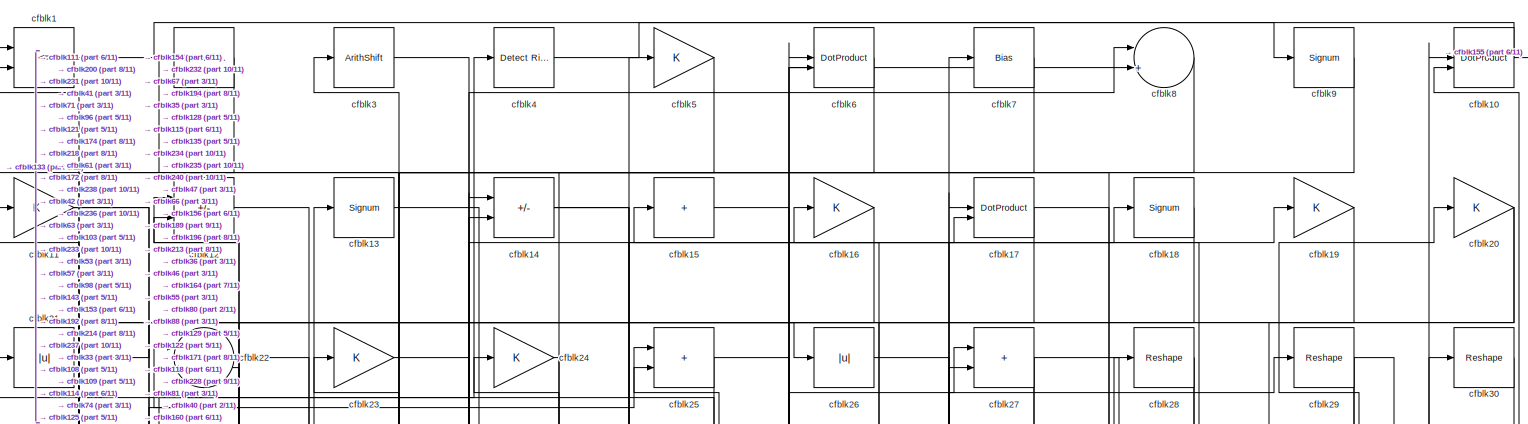
[diagram: root canvas - part 1/11, full width, top band]
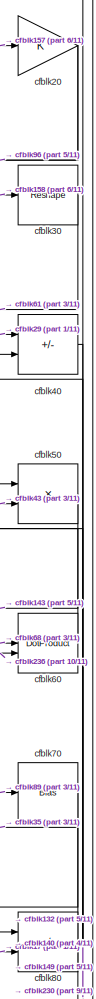
[diagram: root canvas - part 2/11, top right region]
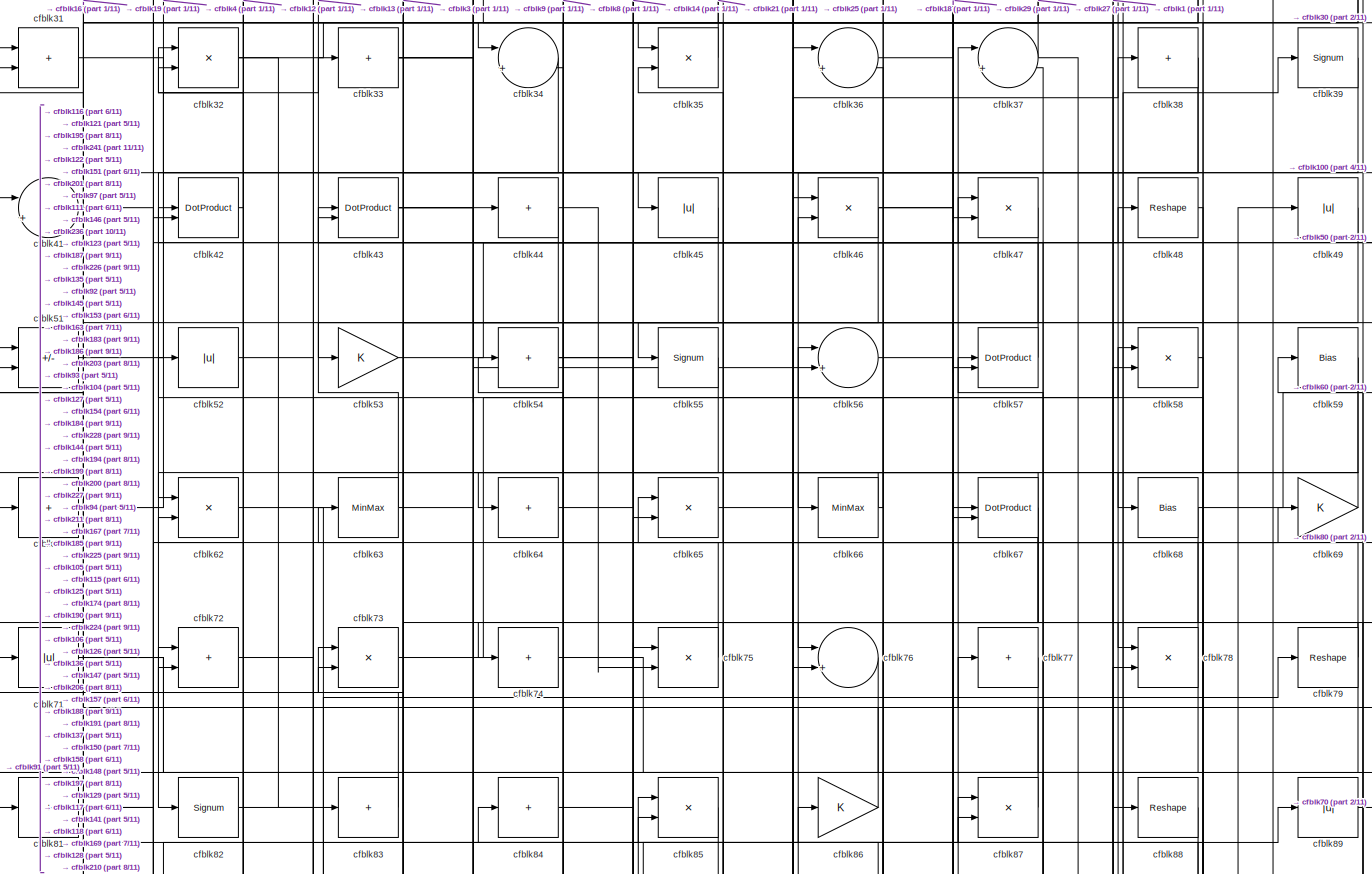
[diagram: root canvas - part 3/11, full width, top band]
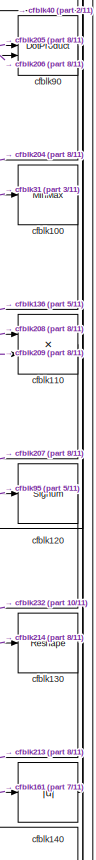
[diagram: root canvas - part 4/11, middle right region]
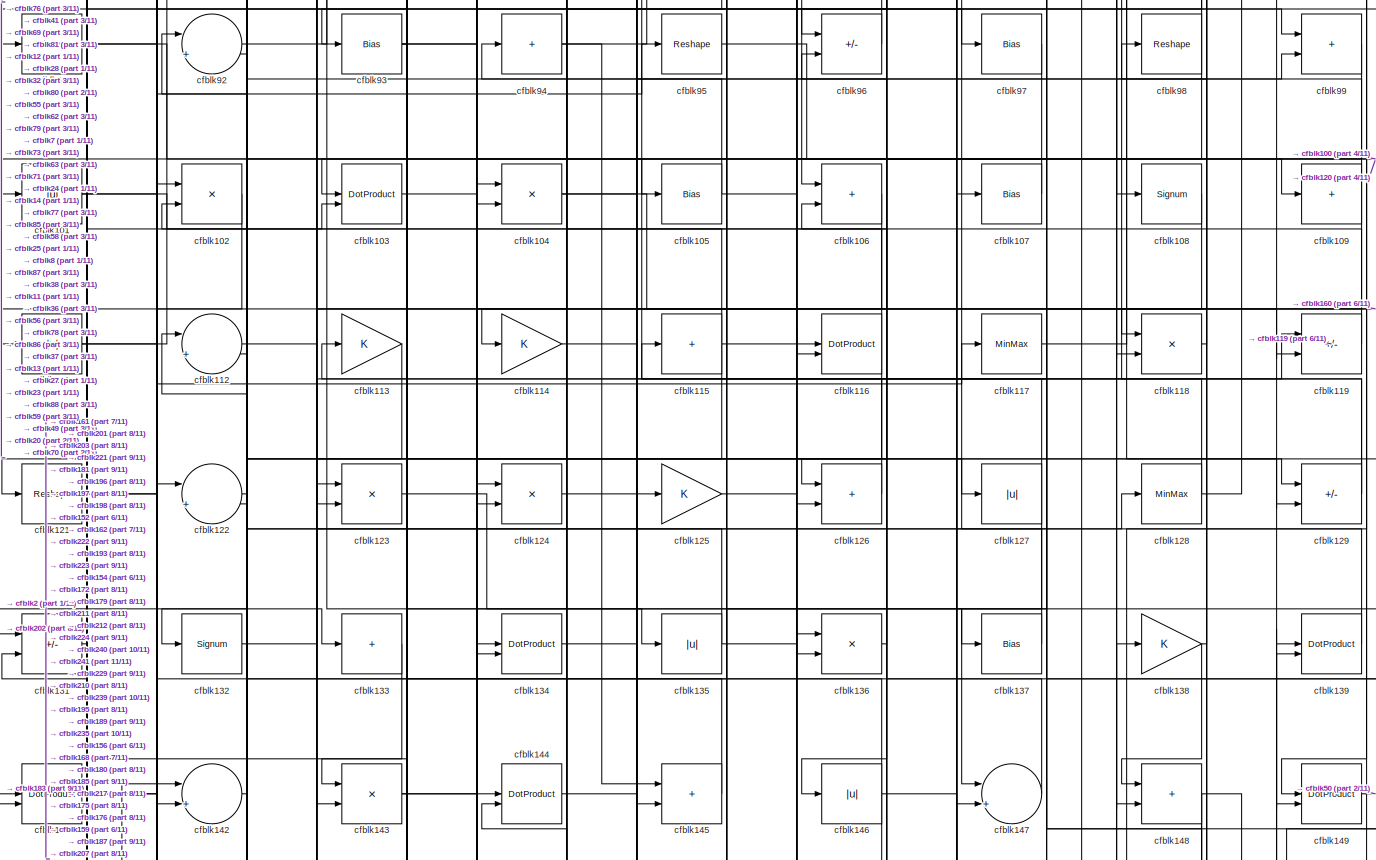
[diagram: root canvas - part 5/11, full width, middle band]
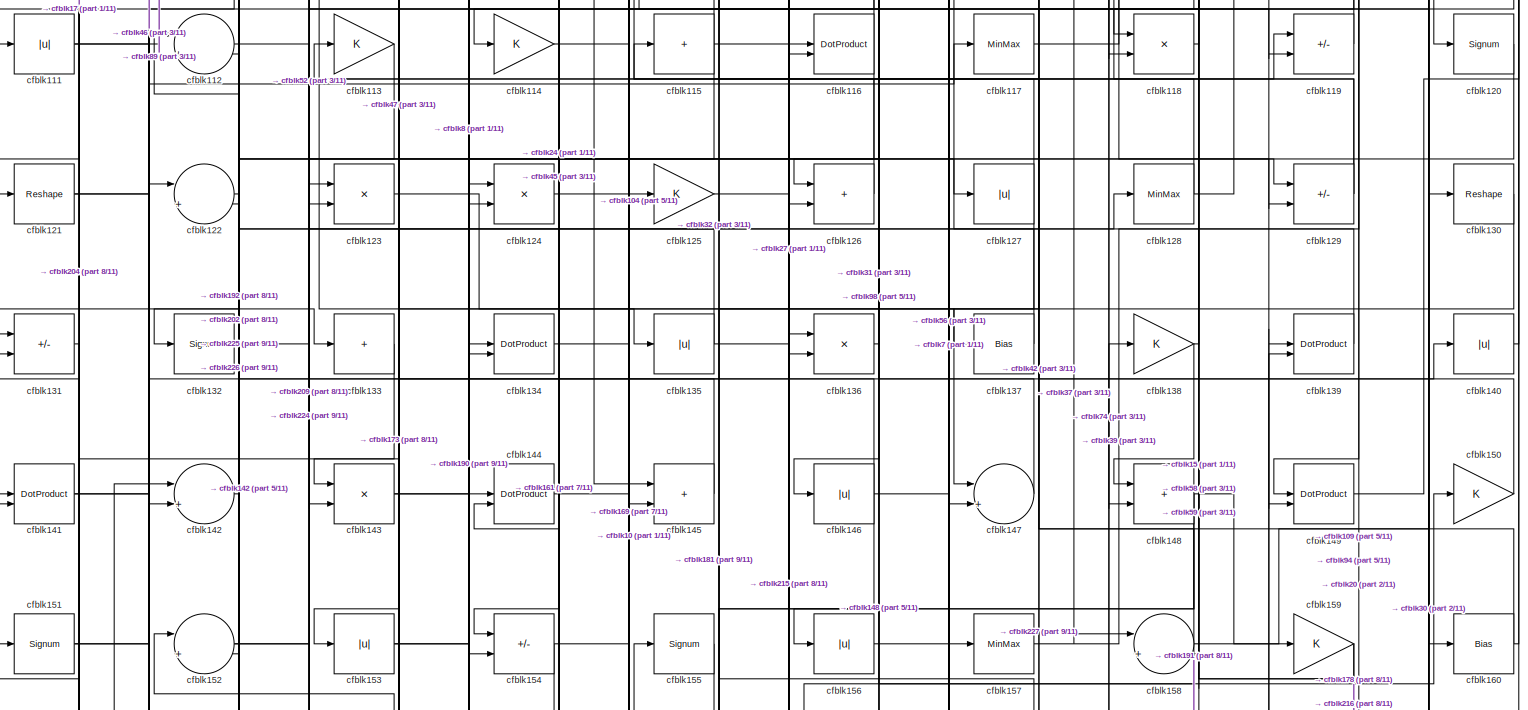
[diagram: root canvas - part 6/11, full width, middle band]
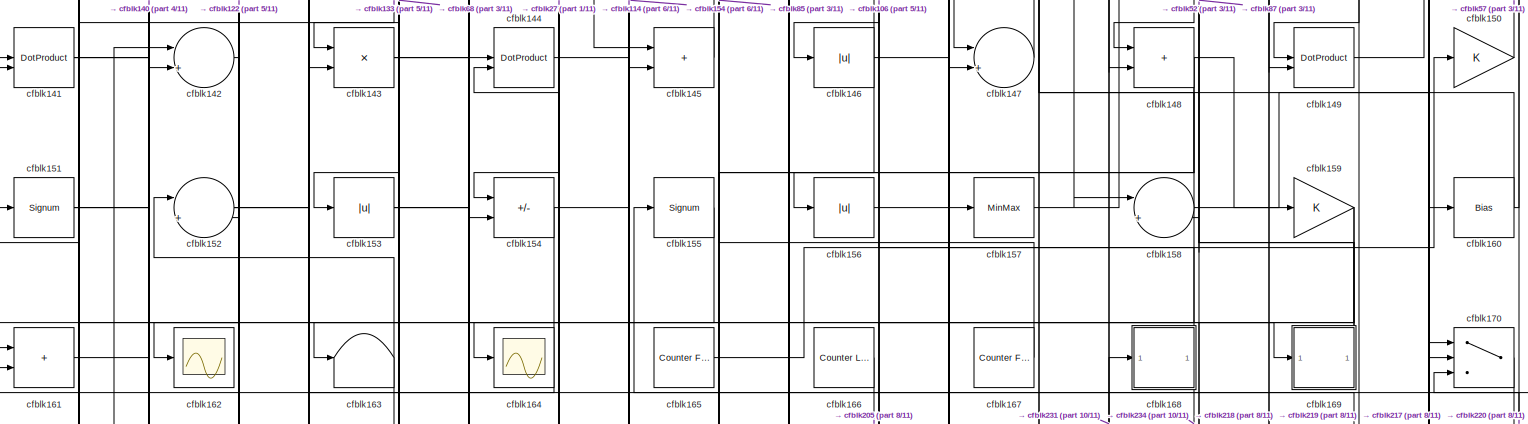
[diagram: root canvas - part 7/11, full width, middle band]
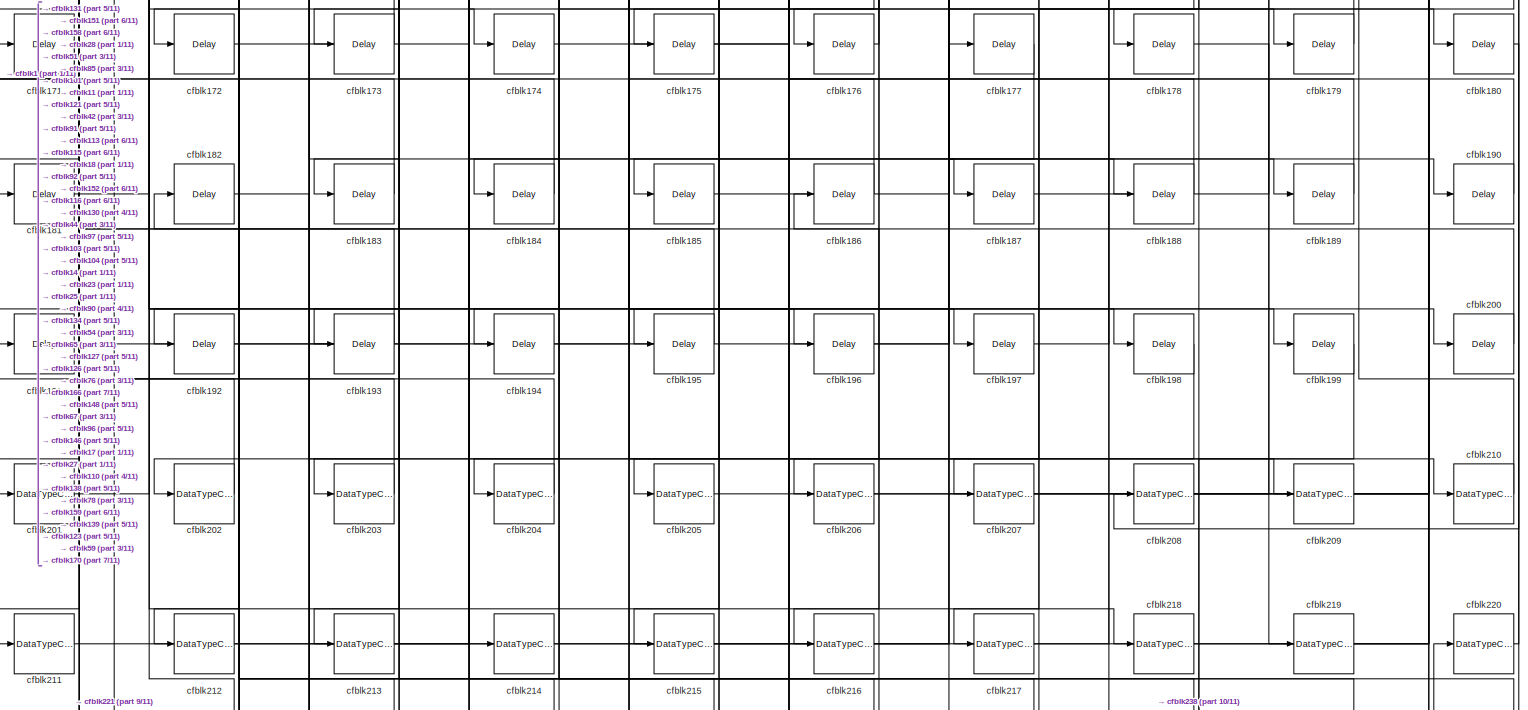
[diagram: root canvas - part 8/11, full width, bottom band]
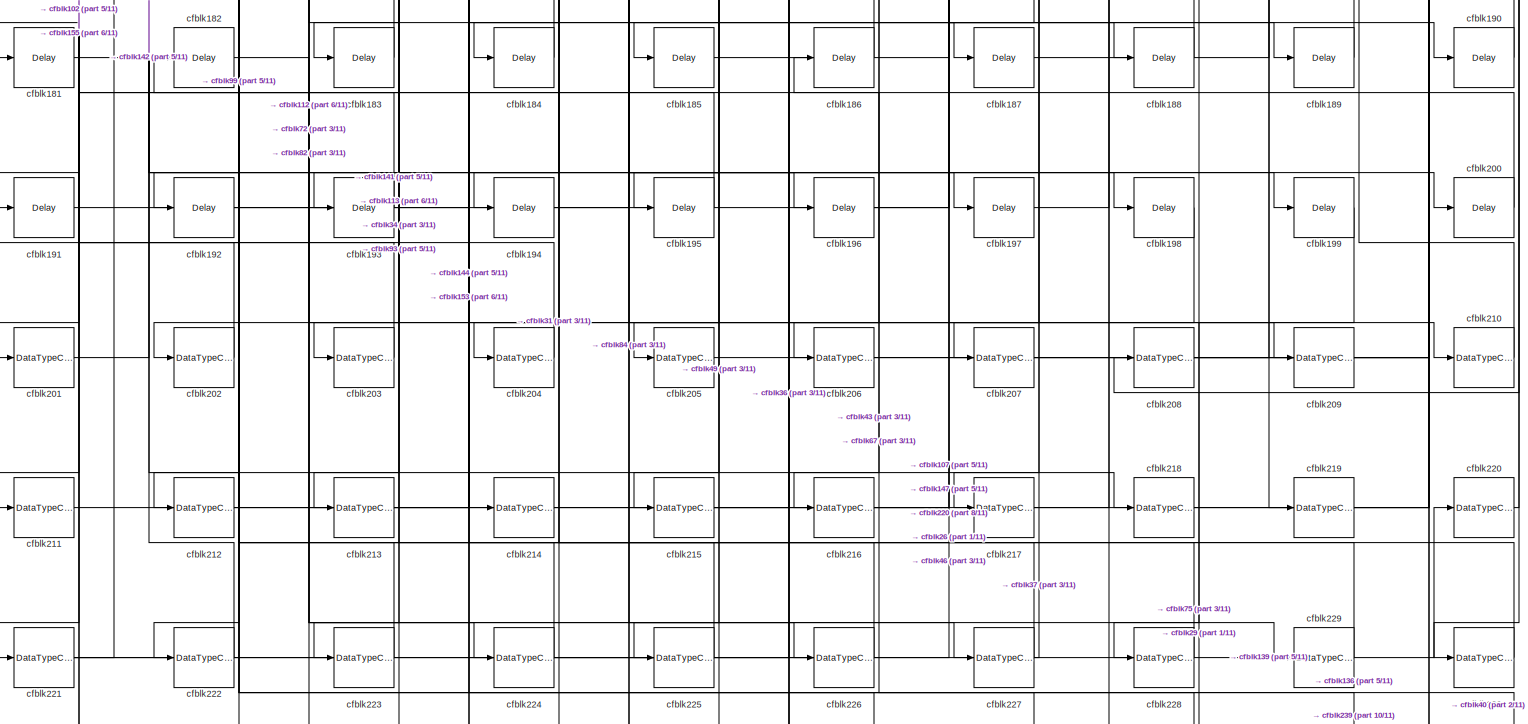
[diagram: root canvas - part 9/11, full width, bottom band]
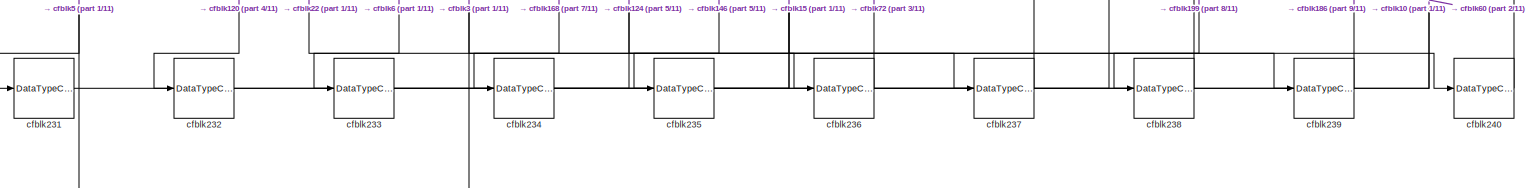
[diagram: root canvas - part 10/11, full width, bottom band]
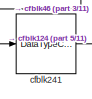
[diagram: root canvas - part 11/11, bottom left region]
MODEL slx_2ee42b140aee
KIND model
CONFIG AbsTol = auto
CONFIG EnableMultiTasking = off
CONFIG FixedStep = auto
CONFIG MaxStep = auto
CONFIG MinStep = auto
CONFIG RelTol = 1e-3
CONFIG SampleTimeConstraint = Unconstrained
CONFIG SolverName = VariableStepAuto
CONFIG StartTime = 0.0
CONFIG StopTime = 10.0
BLOCK [RelationalOperator] cfblk1
  InputSameDT = off
  Operator = <=
  OutDataTypeStr = boolean
BLOCK [DotProduct] cfblk10
  OutDataTypeStr = Inherit: Inherit via internal rule
BLOCK [MinMax] cfblk100
BLOCK [Abs] cfblk101
  SaturateOnIntegerOverflow = off
BLOCK [Product] cfblk102
  Inputs = */
  RndMeth = Zero
  SaturateOnIntegerOverflow = on
BLOCK [DotProduct] cfblk103
  OutDataTypeStr = Inherit: Inherit via internal rule
BLOCK [Product] cfblk104
  Inputs = */
  RndMeth = Zero
  SaturateOnIntegerOverflow = on
BLOCK [Bias] cfblk105
  Bias = 0.0
  SaturateOnIntegerOverflow = off
BLOCK [Sum] cfblk106
  IconShape = rectangular
BLOCK [Bias] cfblk107
  Bias = 0.0
  SaturateOnIntegerOverflow = off
BLOCK [Signum] cfblk108
BLOCK [Sum] cfblk109
  IconShape = rectangular
  Inputs = +
BLOCK [Gain] cfblk11
BLOCK [Product] cfblk110
  Inputs = */
  RndMeth = Zero
  SaturateOnIntegerOverflow = on
BLOCK [Abs] cfblk111
  SaturateOnIntegerOverflow = off
BLOCK [Sum] cfblk112
  Inputs = |++
BLOCK [Gain] cfblk113
BLOCK [Gain] cfblk114
BLOCK [Sum] cfblk115
  IconShape = rectangular
  Inputs = +
BLOCK [DotProduct] cfblk116
  OutDataTypeStr = Inherit: Inherit via internal rule
BLOCK [MinMax] cfblk117
BLOCK [Product] cfblk118
  Inputs = */
  RndMeth = Zero
  SaturateOnIntegerOverflow = on
BLOCK [Sum] cfblk119
  IconShape = rectangular
  Inputs = +-
BLOCK [Sum] cfblk12
  IconShape = rectangular
  Inputs = +-
BLOCK [Signum] cfblk120
BLOCK [Reshape] cfblk121
BLOCK [Sum] cfblk122
  Inputs = |++
BLOCK [Product] cfblk123
  Inputs = */
  RndMeth = Zero
  SaturateOnIntegerOverflow = on
BLOCK [Product] cfblk124
  Inputs = */
  RndMeth = Zero
  SaturateOnIntegerOverflow = on
BLOCK [Gain] cfblk125
BLOCK [Sum] cfblk126
  IconShape = rectangular
BLOCK [Abs] cfblk127
  SaturateOnIntegerOverflow = off
BLOCK [MinMax] cfblk128
BLOCK [Sum] cfblk129
  IconShape = rectangular
  Inputs = +-
BLOCK [Signum] cfblk13
BLOCK [Reshape] cfblk130
BLOCK [Sum] cfblk131
  IconShape = rectangular
  Inputs = +-
BLOCK [Signum] cfblk132
BLOCK [Sum] cfblk133
  IconShape = rectangular
  Inputs = +
BLOCK [DotProduct] cfblk134
  OutDataTypeStr = Inherit: Inherit via internal rule
BLOCK [Abs] cfblk135
  SaturateOnIntegerOverflow = off
BLOCK [Product] cfblk136
  Inputs = */
  RndMeth = Zero
  SaturateOnIntegerOverflow = on
BLOCK [Bias] cfblk137
  Bias = 0.0
  SaturateOnIntegerOverflow = off
BLOCK [Gain] cfblk138
BLOCK [DotProduct] cfblk139
  OutDataTypeStr = Inherit: Inherit via internal rule
BLOCK [Sum] cfblk14
  IconShape = rectangular
  Inputs = +-
BLOCK [Abs] cfblk140
  SaturateOnIntegerOverflow = off
BLOCK [DotProduct] cfblk141
  OutDataTypeStr = Inherit: Inherit via internal rule
BLOCK [Sum] cfblk142
  Inputs = |++
BLOCK [Product] cfblk143
  Inputs = */
  RndMeth = Zero
  SaturateOnIntegerOverflow = on
BLOCK [DotProduct] cfblk144
  OutDataTypeStr = Inherit: Inherit via internal rule
BLOCK [Sum] cfblk145
  IconShape = rectangular
BLOCK [Abs] cfblk146
  SaturateOnIntegerOverflow = off
BLOCK [Sum] cfblk147
  Inputs = |++
BLOCK [Sum] cfblk148
  IconShape = rectangular
BLOCK [DotProduct] cfblk149
  OutDataTypeStr = Inherit: Inherit via internal rule
BLOCK [Sum] cfblk15
  IconShape = rectangular
  Inputs = +
BLOCK [Gain] cfblk150
BLOCK [Signum] cfblk151
BLOCK [Sum] cfblk152
  Inputs = |++
BLOCK [Abs] cfblk153
  SaturateOnIntegerOverflow = off
BLOCK [Sum] cfblk154
  IconShape = rectangular
  Inputs = +-
BLOCK [Signum] cfblk155
BLOCK [Abs] cfblk156
  SaturateOnIntegerOverflow = off
BLOCK [MinMax] cfblk157
BLOCK [Sum] cfblk158
  Inputs = |++
BLOCK [Gain] cfblk159
BLOCK [Gain] cfblk16
BLOCK [Bias] cfblk160
  Bias = 0.0
  SaturateOnIntegerOverflow = off
BLOCK [Sum] cfblk161
  IconShape = rectangular
BLOCK [Scope] cfblk162
  Floating = off
  NumInputPorts = 1
  ScopeSpecificationString = Simulink.scopes.TimeScopeBlockCfg('CurrentConfiguration', extmgr.ConfigurationSet(extmgr.Configuration('Core','General UI',true),extmgr.Configuration('Core','Source UI',true),extmgr.Configuration('Sources','WiredSimulink',true,'DataLoggingVariableName','ScopeData2','DataLoggingSaveFormat','Array','DataLoggingLimitDataPoints',true,'DataLoggingDecimation','1'),extmgr.Configuration('Visuals','Time Do...<+868ch>
BLOCK [Terminator] cfblk163
BLOCK [Scope] cfblk164
  Floating = off
  NumInputPorts = 1
  ScopeSpecificationString = Simulink.scopes.TimeScopeBlockCfg('CurrentConfiguration', extmgr.ConfigurationSet(extmgr.Configuration('Core','General UI',true),extmgr.Configuration('Core','Source UI',true),extmgr.Configuration('Sources','WiredSimulink',true,'DataLoggingVariableName','ScopeData2','DataLoggingSaveFormat','Array','DataLoggingLimitDataPoints',true,'DataLoggingDecimation','1'),extmgr.Configuration('Visuals','Time Do...<+868ch>
BLOCK [Reference] cfblk165  REF=hdlsllib/Sources/Counter
Free-Running
  SourceBlock = hdlsllib/Sources/Counter\nFree-Running
  SourceType = Counter Free-Running
BLOCK [Reference] cfblk166  REF=hdlsllib/Sources/Counter
Limited
  SourceBlock = hdlsllib/Sources/Counter\nLimited
  SourceType = Counter Limited
BLOCK [Reference] cfblk167  REF=hdlsllib/Sources/Counter
Free-Running
  SourceBlock = hdlsllib/Sources/Counter\nFree-Running
  SourceType = Counter Free-Running
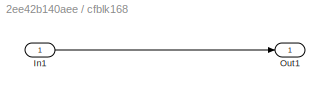
BLOCK [SubSystem] cfblk168
  LibrarySourceBlock = hdlsllib/Ports &\nSubsystems/Subsystem
BLOCK [Inport] cfblk168/In1
BLOCK [Outport] cfblk168/Out1
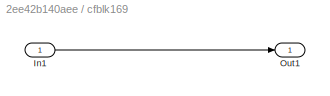
BLOCK [SubSystem] cfblk169
  LibrarySourceBlock = hdlsllib/Ports &\nSubsystems/Subsystem
BLOCK [Inport] cfblk169/In1
BLOCK [Outport] cfblk169/Out1
BLOCK [DotProduct] cfblk17
  OutDataTypeStr = Inherit: Inherit via internal rule
BLOCK [Switch] cfblk170
  InputSameDT = off
  SaturateOnIntegerOverflow = off
BLOCK [Delay] cfblk171
  InputPortMap = u0
  SampleTime = 1
BLOCK [Delay] cfblk172
  InputPortMap = u0
  SampleTime = 1
BLOCK [Delay] cfblk173
  InputPortMap = u0
  SampleTime = 1
BLOCK [Delay] cfblk174
  InputPortMap = u0
  SampleTime = 1
BLOCK [Delay] cfblk175
  InputPortMap = u0
  SampleTime = 1
BLOCK [Delay] cfblk176
  InputPortMap = u0
  SampleTime = 1
BLOCK [Delay] cfblk177
  InputPortMap = u0
  SampleTime = 1
BLOCK [Delay] cfblk178
  InputPortMap = u0
  SampleTime = 1
BLOCK [Delay] cfblk179
  InputPortMap = u0
  SampleTime = 1
BLOCK [Signum] cfblk18
BLOCK [Delay] cfblk180
  InputPortMap = u0
  SampleTime = 1
BLOCK [Delay] cfblk181
  InputPortMap = u0
  SampleTime = 1
BLOCK [Delay] cfblk182
  InputPortMap = u0
  SampleTime = 1
BLOCK [Delay] cfblk183
  InputPortMap = u0
  SampleTime = 1
BLOCK [Delay] cfblk184
  InputPortMap = u0
  SampleTime = 1
BLOCK [Delay] cfblk185
  InputPortMap = u0
  SampleTime = 1
BLOCK [Delay] cfblk186
  InputPortMap = u0
  SampleTime = 1
BLOCK [Delay] cfblk187
  InputPortMap = u0
  SampleTime = 1
BLOCK [Delay] cfblk188
  InputPortMap = u0
  SampleTime = 1
BLOCK [Delay] cfblk189
  InputPortMap = u0
  SampleTime = 1
BLOCK [Gain] cfblk19
BLOCK [Delay] cfblk190
  InputPortMap = u0
  SampleTime = 1
BLOCK [Delay] cfblk191
  InputPortMap = u0
  SampleTime = 1
BLOCK [Delay] cfblk192
  InputPortMap = u0
  SampleTime = 1
BLOCK [Delay] cfblk193
  InputPortMap = u0
  SampleTime = 1
BLOCK [Delay] cfblk194
  InputPortMap = u0
  SampleTime = 1
BLOCK [Delay] cfblk195
  InputPortMap = u0
  SampleTime = 1
BLOCK [Delay] cfblk196
  InputPortMap = u0
  SampleTime = 1
BLOCK [Delay] cfblk197
  InputPortMap = u0
  SampleTime = 1
BLOCK [Delay] cfblk198
  InputPortMap = u0
  SampleTime = 1
BLOCK [Delay] cfblk199
  InputPortMap = u0
  SampleTime = 1
BLOCK [Reference] cfblk2  REF=hdlsllib/Logic and Bit
Operations/Interval Test
  SourceBlock = hdlsllib/Logic and Bit\nOperations/Interval Test
  SourceType = Interval Test
BLOCK [Gain] cfblk20
BLOCK [Delay] cfblk200
  InputPortMap = u0
  SampleTime = 1
BLOCK [DataTypeConversion] cfblk201
  OutDataTypeStr = uint8
  RndMeth = Floor
  SaturateOnIntegerOverflow = off
BLOCK [DataTypeConversion] cfblk202
  OutDataTypeStr = uint8
  RndMeth = Floor
  SaturateOnIntegerOverflow = off
BLOCK [DataTypeConversion] cfblk203
  OutDataTypeStr = uint8
  RndMeth = Floor
  SaturateOnIntegerOverflow = off
BLOCK [DataTypeConversion] cfblk204
  OutDataTypeStr = uint8
  RndMeth = Floor
  SaturateOnIntegerOverflow = off
BLOCK [DataTypeConversion] cfblk205
  OutDataTypeStr = uint8
  RndMeth = Floor
  SaturateOnIntegerOverflow = off
BLOCK [DataTypeConversion] cfblk206
  OutDataTypeStr = uint8
  RndMeth = Floor
  SaturateOnIntegerOverflow = off
BLOCK [DataTypeConversion] cfblk207
  OutDataTypeStr = uint8
  RndMeth = Floor
  SaturateOnIntegerOverflow = off
BLOCK [DataTypeConversion] cfblk208
  OutDataTypeStr = uint8
  RndMeth = Floor
  SaturateOnIntegerOverflow = off
BLOCK [DataTypeConversion] cfblk209
  OutDataTypeStr = uint8
  RndMeth = Floor
  SaturateOnIntegerOverflow = off
BLOCK [Abs] cfblk21
  SaturateOnIntegerOverflow = off
BLOCK [DataTypeConversion] cfblk210
  OutDataTypeStr = uint8
  RndMeth = Floor
  SaturateOnIntegerOverflow = off
BLOCK [DataTypeConversion] cfblk211
  OutDataTypeStr = uint8
  RndMeth = Floor
  SaturateOnIntegerOverflow = off
BLOCK [DataTypeConversion] cfblk212
  OutDataTypeStr = uint8
  RndMeth = Floor
  SaturateOnIntegerOverflow = off
BLOCK [DataTypeConversion] cfblk213
  OutDataTypeStr = uint8
  RndMeth = Floor
  SaturateOnIntegerOverflow = off
BLOCK [DataTypeConversion] cfblk214
  OutDataTypeStr = uint8
  RndMeth = Floor
  SaturateOnIntegerOverflow = off
BLOCK [DataTypeConversion] cfblk215
  OutDataTypeStr = uint8
  RndMeth = Floor
  SaturateOnIntegerOverflow = off
BLOCK [DataTypeConversion] cfblk216
  OutDataTypeStr = uint8
  RndMeth = Floor
  SaturateOnIntegerOverflow = off
BLOCK [DataTypeConversion] cfblk217
  OutDataTypeStr = uint8
  RndMeth = Floor
  SaturateOnIntegerOverflow = off
BLOCK [DataTypeConversion] cfblk218
  OutDataTypeStr = uint8
  RndMeth = Floor
  SaturateOnIntegerOverflow = off
BLOCK [DataTypeConversion] cfblk219
  OutDataTypeStr = uint8
  RndMeth = Floor
  SaturateOnIntegerOverflow = off
BLOCK [Sum] cfblk22
  Inputs = |++
BLOCK [DataTypeConversion] cfblk220
  OutDataTypeStr = uint8
  RndMeth = Floor
  SaturateOnIntegerOverflow = off
BLOCK [DataTypeConversion] cfblk221
  RndMeth = Floor
  SaturateOnIntegerOverflow = off
BLOCK [DataTypeConversion] cfblk222
  OutDataTypeStr = uint8
  RndMeth = Floor
  SaturateOnIntegerOverflow = off
BLOCK [DataTypeConversion] cfblk223
  OutDataTypeStr = uint8
  RndMeth = Floor
  SaturateOnIntegerOverflow = off
BLOCK [DataTypeConversion] cfblk224
  RndMeth = Floor
  SaturateOnIntegerOverflow = off
BLOCK [DataTypeConversion] cfblk225
  OutDataTypeStr = uint8
  RndMeth = Floor
  SaturateOnIntegerOverflow = off
BLOCK [DataTypeConversion] cfblk226
  OutDataTypeStr = uint8
  RndMeth = Floor
  SaturateOnIntegerOverflow = off
BLOCK [DataTypeConversion] cfblk227
  RndMeth = Floor
  SaturateOnIntegerOverflow = off
BLOCK [DataTypeConversion] cfblk228
  OutDataTypeStr = uint8
  RndMeth = Floor
  SaturateOnIntegerOverflow = off
BLOCK [DataTypeConversion] cfblk229
  OutDataTypeStr = uint8
  RndMeth = Floor
  SaturateOnIntegerOverflow = off
BLOCK [Gain] cfblk23
BLOCK [DataTypeConversion] cfblk230
  OutDataTypeStr = uint8
  RndMeth = Floor
  SaturateOnIntegerOverflow = off
BLOCK [DataTypeConversion] cfblk231
  OutDataTypeStr = uint8
  RndMeth = Floor
  SaturateOnIntegerOverflow = off
BLOCK [DataTypeConversion] cfblk232
  OutDataTypeStr = uint8
  RndMeth = Floor
  SaturateOnIntegerOverflow = off
BLOCK [DataTypeConversion] cfblk233
  OutDataTypeStr = uint8
  RndMeth = Floor
  SaturateOnIntegerOverflow = off
BLOCK [DataTypeConversion] cfblk234
  OutDataTypeStr = uint8
  RndMeth = Floor
  SaturateOnIntegerOverflow = off
BLOCK [DataTypeConversion] cfblk235
  OutDataTypeStr = uint8
  RndMeth = Floor
  SaturateOnIntegerOverflow = off
BLOCK [DataTypeConversion] cfblk236
  RndMeth = Floor
  SaturateOnIntegerOverflow = off
BLOCK [DataTypeConversion] cfblk237
  OutDataTypeStr = uint8
  RndMeth = Floor
  SaturateOnIntegerOverflow = off
BLOCK [DataTypeConversion] cfblk238
  OutDataTypeStr = uint8
  RndMeth = Floor
  SaturateOnIntegerOverflow = off
BLOCK [DataTypeConversion] cfblk239
  OutDataTypeStr = uint8
  RndMeth = Floor
  SaturateOnIntegerOverflow = off
BLOCK [Gain] cfblk24
BLOCK [DataTypeConversion] cfblk240
  OutDataTypeStr = uint8
  RndMeth = Floor
  SaturateOnIntegerOverflow = off
BLOCK [DataTypeConversion] cfblk241
  OutDataTypeStr = uint8
  RndMeth = Floor
  SaturateOnIntegerOverflow = off
BLOCK [Sum] cfblk25
  IconShape = rectangular
BLOCK [Abs] cfblk26
  SaturateOnIntegerOverflow = off
BLOCK [Sum] cfblk27
  IconShape = rectangular
BLOCK [Reshape] cfblk28
BLOCK [Reshape] cfblk29
BLOCK [ArithShift] cfblk3
  BitShiftNumber = 8
  InputPortMap = u0
BLOCK [Reshape] cfblk30
BLOCK [Sum] cfblk31
  IconShape = rectangular
BLOCK [Product] cfblk32
  Inputs = */
  RndMeth = Zero
  SaturateOnIntegerOverflow = on
BLOCK [Sum] cfblk33
  IconShape = rectangular
  Inputs = +
BLOCK [Sum] cfblk34
  Inputs = |++
BLOCK [Product] cfblk35
  Inputs = */
  RndMeth = Zero
  SaturateOnIntegerOverflow = on
BLOCK [Sum] cfblk36
  Inputs = |++
BLOCK [Sum] cfblk37
  Inputs = |++
BLOCK [Sum] cfblk38
  IconShape = rectangular
  Inputs = +
BLOCK [Signum] cfblk39
BLOCK [Reference] cfblk4  REF=hdlsllib/Logic and Bit
Operations/Detect Rise
Positive
  SourceBlock = hdlsllib/Logic and Bit\nOperations/Detect Rise\nPositive
  SourceType = Detect Rise Positive
BLOCK [Sum] cfblk40
  IconShape = rectangular
  Inputs = +-
BLOCK [Sum] cfblk41
  Inputs = |++
BLOCK [DotProduct] cfblk42
  OutDataTypeStr = Inherit: Inherit via internal rule
BLOCK [DotProduct] cfblk43
  OutDataTypeStr = Inherit: Inherit via internal rule
BLOCK [Sum] cfblk44
  IconShape = rectangular
  Inputs = +
BLOCK [Abs] cfblk45
  SaturateOnIntegerOverflow = off
BLOCK [Product] cfblk46
  Inputs = */
  RndMeth = Zero
  SaturateOnIntegerOverflow = on
BLOCK [Product] cfblk47
  Inputs = */
  RndMeth = Zero
  SaturateOnIntegerOverflow = on
BLOCK [Reshape] cfblk48
BLOCK [Abs] cfblk49
  SaturateOnIntegerOverflow = off
BLOCK [Gain] cfblk5
BLOCK [Product] cfblk50
  Inputs = */
  RndMeth = Zero
  SaturateOnIntegerOverflow = on
BLOCK [Sum] cfblk51
  IconShape = rectangular
  Inputs = +-
BLOCK [Abs] cfblk52
  SaturateOnIntegerOverflow = off
BLOCK [Gain] cfblk53
BLOCK [Sum] cfblk54
  IconShape = rectangular
  Inputs = +
BLOCK [Signum] cfblk55
BLOCK [Sum] cfblk56
  Inputs = |++
BLOCK [DotProduct] cfblk57
  OutDataTypeStr = Inherit: Inherit via internal rule
BLOCK [Product] cfblk58
  Inputs = */
  RndMeth = Zero
  SaturateOnIntegerOverflow = on
BLOCK [Bias] cfblk59
  Bias = 0.0
  SaturateOnIntegerOverflow = off
BLOCK [DotProduct] cfblk6
  OutDataTypeStr = Inherit: Inherit via internal rule
BLOCK [DotProduct] cfblk60
  OutDataTypeStr = Inherit: Inherit via internal rule
BLOCK [Sum] cfblk61
  IconShape = rectangular
  Inputs = +
BLOCK [Product] cfblk62
  Inputs = */
  RndMeth = Zero
  SaturateOnIntegerOverflow = on
BLOCK [MinMax] cfblk63
BLOCK [Sum] cfblk64
  IconShape = rectangular
  Inputs = +
BLOCK [Product] cfblk65
  Inputs = */
  RndMeth = Zero
  SaturateOnIntegerOverflow = on
BLOCK [MinMax] cfblk66
BLOCK [DotProduct] cfblk67
  OutDataTypeStr = Inherit: Inherit via internal rule
BLOCK [Bias] cfblk68
  Bias = 0.0
  SaturateOnIntegerOverflow = off
BLOCK [Gain] cfblk69
BLOCK [Bias] cfblk7
  Bias = 0.0
  SaturateOnIntegerOverflow = off
BLOCK [Bias] cfblk70
  Bias = 0.0
  SaturateOnIntegerOverflow = off
BLOCK [Abs] cfblk71
  SaturateOnIntegerOverflow = off
BLOCK [Sum] cfblk72
  IconShape = rectangular
BLOCK [Product] cfblk73
  Inputs = */
  RndMeth = Zero
  SaturateOnIntegerOverflow = on
BLOCK [Sum] cfblk74
  IconShape = rectangular
  Inputs = +
BLOCK [Product] cfblk75
  Inputs = */
  RndMeth = Zero
  SaturateOnIntegerOverflow = on
BLOCK [Sum] cfblk76
  Inputs = |++
BLOCK [Sum] cfblk77
  IconShape = rectangular
  Inputs = +
BLOCK [Product] cfblk78
  Inputs = */
  RndMeth = Zero
  SaturateOnIntegerOverflow = on
BLOCK [Reshape] cfblk79
BLOCK [Sum] cfblk8
  Inputs = |++
BLOCK [Sum] cfblk80
  IconShape = rectangular
  Inputs = +-
BLOCK [Sum] cfblk81
  IconShape = rectangular
  Inputs = +
BLOCK [Signum] cfblk82
BLOCK [Sum] cfblk83
  IconShape = rectangular
  Inputs = +
BLOCK [Sum] cfblk84
  IconShape = rectangular
  Inputs = +
BLOCK [Product] cfblk85
  Inputs = */
  RndMeth = Zero
  SaturateOnIntegerOverflow = on
BLOCK [Gain] cfblk86
BLOCK [Product] cfblk87
  Inputs = */
  RndMeth = Zero
  SaturateOnIntegerOverflow = on
BLOCK [Reshape] cfblk88
BLOCK [Abs] cfblk89
  SaturateOnIntegerOverflow = off
BLOCK [Signum] cfblk9
BLOCK [DotProduct] cfblk90
  OutDataTypeStr = Inherit: Inherit via internal rule
BLOCK [MinMax] cfblk91
BLOCK [Sum] cfblk92
  Inputs = |++
BLOCK [Bias] cfblk93
  Bias = 0.0
  SaturateOnIntegerOverflow = off
BLOCK [Sum] cfblk94
  IconShape = rectangular
  Inputs = +
BLOCK [Reshape] cfblk95
BLOCK [Sum] cfblk96
  IconShape = rectangular
  Inputs = +-
BLOCK [Bias] cfblk97
  Bias = 0.0
  SaturateOnIntegerOverflow = off
BLOCK [Reshape] cfblk98
BLOCK [Sum] cfblk99
  IconShape = rectangular
LINE cfblk100:1 -> cfblk136:2
NET cfblk101:1 -> cfblk103:2, cfblk197:1
LINE cfblk102:1 -> cfblk221:1
LINE cfblk103:1 -> cfblk179:1
NET cfblk104:1 -> cfblk160:1, cfblk99:2
NET cfblk105:1 -> cfblk38:1, cfblk62:2
LINE cfblk106:1 -> cfblk145:2
LINE cfblk107:1 -> cfblk101:1
LINE cfblk108:1 -> cfblk143:2
NET cfblk109:1 -> cfblk154:2, cfblk24:1
NET cfblk10:1 -> cfblk155:1, cfblk2:1
LINE cfblk110:1 -> cfblk207:1
NET cfblk111:1 -> cfblk119:2, cfblk89:1
LINE cfblk112:1 -> cfblk224:1
LINE cfblk113:1 -> cfblk192:1
LINE cfblk114:1 -> cfblk169:1
NET cfblk115:1 -> cfblk202:1, cfblk27:1, cfblk32:2
NET cfblk116:1 -> cfblk173:1, cfblk31:2
LINE cfblk117:1 -> cfblk39:1
LINE cfblk118:1 -> cfblk15:1
LINE cfblk119:1 -> cfblk94:1
NET cfblk11:1 -> cfblk174:1, cfblk218:1
LINE cfblk120:1 -> cfblk232:1
NET cfblk121:1 -> cfblk198:1, cfblk25:2
LINE cfblk122:1 -> cfblk162:1
LINE cfblk123:1 -> cfblk147:1
LINE cfblk124:1 -> cfblk239:1
LINE cfblk125:1 -> cfblk87:1
LINE cfblk126:1 -> cfblk85:2
NET cfblk127:1 -> cfblk195:1, cfblk73:2
NET cfblk128:1 -> cfblk25:1, cfblk49:1
NET cfblk129:1 -> cfblk28:1, cfblk36:2
LINE cfblk12:1 -> cfblk129:2
LINE cfblk130:1 -> cfblk213:1
LINE cfblk131:1 -> cfblk201:1
LINE cfblk132:1 -> cfblk128:1
LINE cfblk133:1 -> cfblk161:1
LINE cfblk134:1 -> cfblk210:1
NET cfblk135:1 -> cfblk12:1, cfblk8:2
LINE cfblk136:1 -> cfblk56:1
LINE cfblk137:1 -> cfblk37:1
NET cfblk138:1 -> cfblk148:1, cfblk98:1
LINE cfblk139:1 -> cfblk92:2
LINE cfblk13:1 -> cfblk108:1
LINE cfblk140:1 -> cfblk40:2
NET cfblk141:1 -> cfblk69:1, cfblk95:1
LINE cfblk142:1 -> cfblk152:2
NET cfblk143:1 -> cfblk14:1, cfblk80:1
LINE cfblk144:1 -> cfblk77:1
LINE cfblk145:1 -> cfblk63:1
NET cfblk146:1 -> cfblk180:1, cfblk235:1, cfblk32:1
LINE cfblk147:1 -> cfblk86:1
NET cfblk148:1 -> cfblk159:1, cfblk175:1, cfblk176:1
LINE cfblk149:1 -> cfblk50:1
NET cfblk14:1 -> cfblk125:1, cfblk67:2
LINE cfblk150:1 -> cfblk57:1
NET cfblk151:1 -> cfblk117:1, cfblk46:2
NET cfblk152:1 -> cfblk119:1, cfblk209:1
NET cfblk153:1 -> cfblk190:1, cfblk8:1
NET cfblk154:1 -> cfblk161:2, cfblk17:2
LINE cfblk155:1 -> cfblk181:1
LINE cfblk156:1 -> cfblk7:1
LINE cfblk157:1 -> cfblk20:1
NET cfblk158:1 -> cfblk191:1, cfblk30:1, cfblk42:1
NET cfblk159:1 -> cfblk178:1, cfblk216:1
LINE cfblk15:1 -> cfblk240:1
NET cfblk160:1 -> cfblk10:2, cfblk115:1
LINE cfblk161:1 -> cfblk140:1
LINE cfblk165:1 -> cfblk150:1
LINE cfblk166:1 -> cfblk205:1
LINE cfblk167:1 -> cfblk85:1
LINE cfblk168/In1:1 -> cfblk168/Out1:1
NET cfblk168:1 -> cfblk106:2, cfblk234:1
LINE cfblk169/In1:1 -> cfblk169/Out1:1
NET cfblk169:1 -> cfblk52:1, cfblk87:2
LINE cfblk16:1 -> cfblk71:1
LINE cfblk170:1 -> cfblk217:1
LINE cfblk171:1 -> cfblk1:1
LINE cfblk172:1 -> cfblk104:1
LINE cfblk173:1 -> cfblk152:1
LINE cfblk174:1 -> cfblk76:2
LINE cfblk175:1 -> cfblk126:2
LINE cfblk176:1 -> cfblk96:2
LINE cfblk177:1 -> cfblk215:1
LINE cfblk178:1 -> cfblk219:1
LINE cfblk179:1 -> cfblk123:1
NET cfblk17:1 -> cfblk111:1, cfblk80:2
LINE cfblk180:1 -> cfblk208:1
LINE cfblk181:1 -> cfblk142:2
LINE cfblk182:1 -> cfblk229:1
LINE cfblk183:1 -> cfblk141:1
LINE cfblk184:1 -> cfblk31:1
LINE cfblk185:1 -> cfblk147:2
LINE cfblk186:1 -> cfblk43:2
LINE cfblk187:1 -> cfblk139:1
LINE cfblk188:1 -> cfblk75:1
LINE cfblk189:1 -> cfblk136:1
LINE cfblk18:1 -> cfblk172:1
LINE cfblk190:1 -> cfblk46:1
LINE cfblk191:1 -> cfblk67:1
LINE cfblk192:1 -> cfblk14:2
LINE cfblk193:1 -> cfblk92:1
LINE cfblk194:1 -> cfblk65:2
LINE cfblk195:1 -> cfblk51:2
LINE cfblk196:1 -> cfblk27:2
LINE cfblk197:1 -> cfblk78:2
LINE cfblk198:1 -> cfblk212:1
LINE cfblk199:1 -> cfblk238:1
LINE cfblk19:1 -> cfblk41:2
LINE cfblk1:1 -> cfblk88:1
LINE cfblk200:1 -> cfblk1:2
LINE cfblk201:1 -> cfblk42:2
LINE cfblk202:1 -> cfblk131:1
LINE cfblk203:1 -> cfblk131:2
LINE cfblk204:1 -> cfblk151:1
LINE cfblk205:1 -> cfblk90:1
LINE cfblk206:1 -> cfblk90:2
LINE cfblk207:1 -> cfblk139:2
LINE cfblk208:1 -> cfblk110:1
LINE cfblk209:1 -> cfblk110:2
NET cfblk20:1 -> cfblk149:2, cfblk96:1
LINE cfblk210:1 -> cfblk59:1
LINE cfblk211:1 -> cfblk134:1
LINE cfblk212:1 -> cfblk134:2
LINE cfblk213:1 -> cfblk17:1
LINE cfblk214:1 -> cfblk130:1
LINE cfblk215:1 -> cfblk116:1
LINE cfblk216:1 -> cfblk177:1
LINE cfblk217:1 -> cfblk138:1
LINE cfblk218:1 -> cfblk170:1
LINE cfblk219:1 -> cfblk170:2
LINE cfblk21:1 -> cfblk26:1
LINE cfblk220:1 -> cfblk170:3
NET cfblk221:1 -> cfblk107:1, cfblk142:1, cfblk220:1
LINE cfblk222:1 -> cfblk102:1
LINE cfblk223:1 -> cfblk102:2
NET cfblk224:1 -> cfblk144:1, cfblk36:1
LINE cfblk225:1 -> cfblk112:1
LINE cfblk226:1 -> cfblk112:2
NET cfblk227:1 -> cfblk113:1, cfblk37:2
LINE cfblk228:1 -> cfblk84:1
LINE cfblk229:1 -> cfblk144:2
LINE cfblk22:1 -> cfblk236:1
LINE cfblk230:1 -> cfblk182:1
LINE cfblk231:1 -> cfblk168:1
LINE cfblk232:1 -> cfblk5:1
LINE cfblk233:1 -> cfblk10:1
LINE cfblk234:1 -> cfblk6:1
LINE cfblk235:1 -> cfblk6:2
NET cfblk236:1 -> cfblk60:2, cfblk72:2
LINE cfblk237:1 -> cfblk22:1
LINE cfblk238:1 -> cfblk22:2
LINE cfblk239:1 -> cfblk186:1
LINE cfblk23:1 -> cfblk214:1
LINE cfblk240:1 -> cfblk124:1
LINE cfblk241:1 -> cfblk124:2
LINE cfblk24:1 -> cfblk114:1
NET cfblk25:1 -> cfblk194:1, cfblk47:2
LINE cfblk26:1 -> cfblk189:1
NET cfblk27:1 -> cfblk129:1, cfblk164:1, cfblk55:1
NET cfblk28:1 -> cfblk122:2, cfblk171:1
NET cfblk29:1 -> cfblk228:1, cfblk40:1, cfblk81:1
LINE cfblk2:1 -> cfblk133:1
LINE cfblk30:1 -> cfblk61:1
LINE cfblk31:1 -> cfblk100:1
NET cfblk32:1 -> cfblk34:1, cfblk83:1
NET cfblk33:1 -> cfblk19:1, cfblk45:1, cfblk57:2
LINE cfblk34:1 -> cfblk183:1
LINE cfblk35:1 -> cfblk21:1
LINE cfblk36:1 -> cfblk18:1
NET cfblk37:1 -> cfblk158:1, cfblk35:1
NET cfblk38:1 -> cfblk106:1, cfblk121:1
LINE cfblk39:1 -> cfblk82:1
LINE cfblk3:1 -> cfblk237:1
LINE cfblk40:1 -> cfblk230:1
LINE cfblk41:1 -> cfblk122:1
LINE cfblk42:1 -> cfblk12:2
NET cfblk43:1 -> cfblk44:1, cfblk50:2, cfblk56:2
NET cfblk44:1 -> cfblk203:1, cfblk75:2
LINE cfblk45:1 -> cfblk154:1
NET cfblk46:1 -> cfblk188:1, cfblk241:1, cfblk29:1
LINE cfblk47:1 -> cfblk153:1
LINE cfblk48:1 -> cfblk68:1
LINE cfblk49:1 -> cfblk225:1
LINE cfblk4:1 -> cfblk9:1
LINE cfblk50:1 -> cfblk143:1
LINE cfblk51:1 -> cfblk33:1
LINE cfblk52:1 -> cfblk116:2
LINE cfblk53:1 -> cfblk47:1
NET cfblk54:1 -> cfblk199:1, cfblk200:1
LINE cfblk55:1 -> cfblk123:2
LINE cfblk56:1 -> cfblk157:1
LINE cfblk57:1 -> cfblk3:1
LINE cfblk58:1 -> cfblk118:1
NET cfblk59:1 -> cfblk158:2, cfblk93:1
LINE cfblk5:1 -> cfblk231:1
LINE cfblk60:1 -> cfblk43:1
LINE cfblk61:1 -> cfblk4:1
LINE cfblk62:1 -> cfblk135:1
NET cfblk63:1 -> cfblk127:1, cfblk13:1
LINE cfblk64:1 -> cfblk48:1
LINE cfblk65:1 -> cfblk78:1
NET cfblk66:1 -> cfblk16:1, cfblk64:1
NET cfblk67:1 -> cfblk184:1, cfblk185:1, cfblk206:1, cfblk62:1
NET cfblk68:1 -> cfblk163:1, cfblk60:1
LINE cfblk69:1 -> cfblk66:1
LINE cfblk6:1 -> cfblk233:1
LINE cfblk70:1 -> cfblk149:1
NET cfblk71:1 -> cfblk104:2, cfblk148:2
LINE cfblk72:1 -> cfblk226:1
LINE cfblk73:1 -> cfblk58:1
LINE cfblk74:1 -> cfblk118:2
LINE cfblk75:1 -> cfblk65:1
LINE cfblk76:1 -> cfblk91:1
LINE cfblk77:1 -> cfblk146:1
NET cfblk78:1 -> cfblk126:1, cfblk54:1
NET cfblk79:1 -> cfblk137:1, cfblk34:2, cfblk76:1
LINE cfblk7:1 -> cfblk103:1
NET cfblk80:1 -> cfblk132:1, cfblk35:2
NET cfblk81:1 -> cfblk73:1, cfblk97:1
LINE cfblk82:1 -> cfblk187:1
LINE cfblk83:1 -> cfblk41:1
LINE cfblk84:1 -> cfblk227:1
LINE cfblk85:1 -> cfblk211:1
LINE cfblk86:1 -> cfblk51:1
LINE cfblk87:1 -> cfblk72:1
LINE cfblk88:1 -> cfblk141:2
LINE cfblk89:1 -> cfblk70:1
LINE cfblk8:1 -> cfblk74:1
LINE cfblk90:1 -> cfblk204:1
NET cfblk91:1 -> cfblk109:1, cfblk196:1
LINE cfblk92:1 -> cfblk79:1
NET cfblk93:1 -> cfblk105:1, cfblk223:1, cfblk99:1
NET cfblk94:1 -> cfblk145:1, cfblk58:2
LINE cfblk95:1 -> cfblk120:1
LINE cfblk96:1 -> cfblk11:1
LINE cfblk97:1 -> cfblk193:1
NET cfblk98:1 -> cfblk156:1, cfblk23:1
LINE cfblk99:1 -> cfblk222:1
LINE cfblk9:1 -> cfblk53:1
note: NET lines group one-source signal fan-out (src -> all destinations, sorted); 1:1 wires keep LINE
